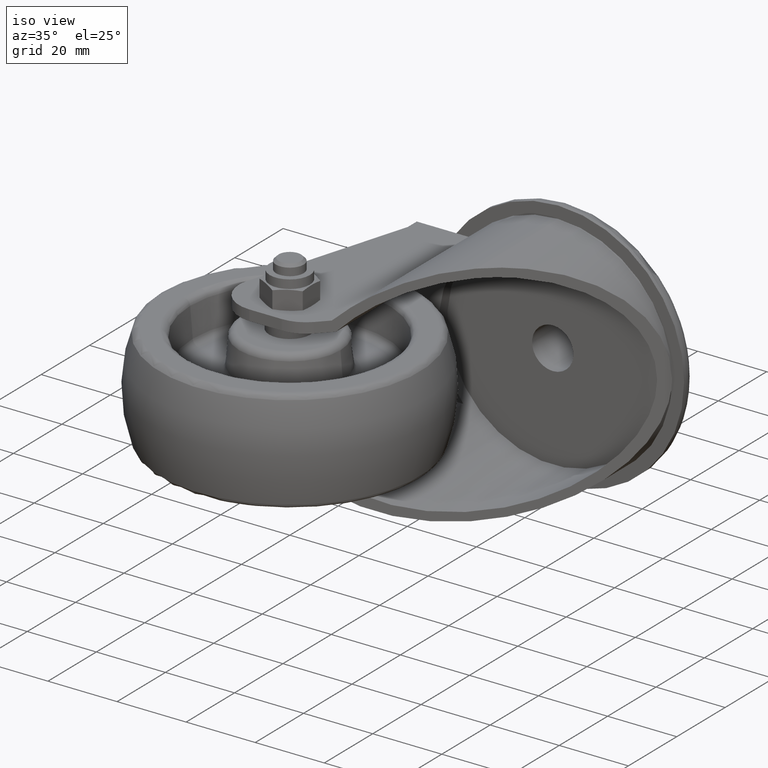
[diagram: clean part render]
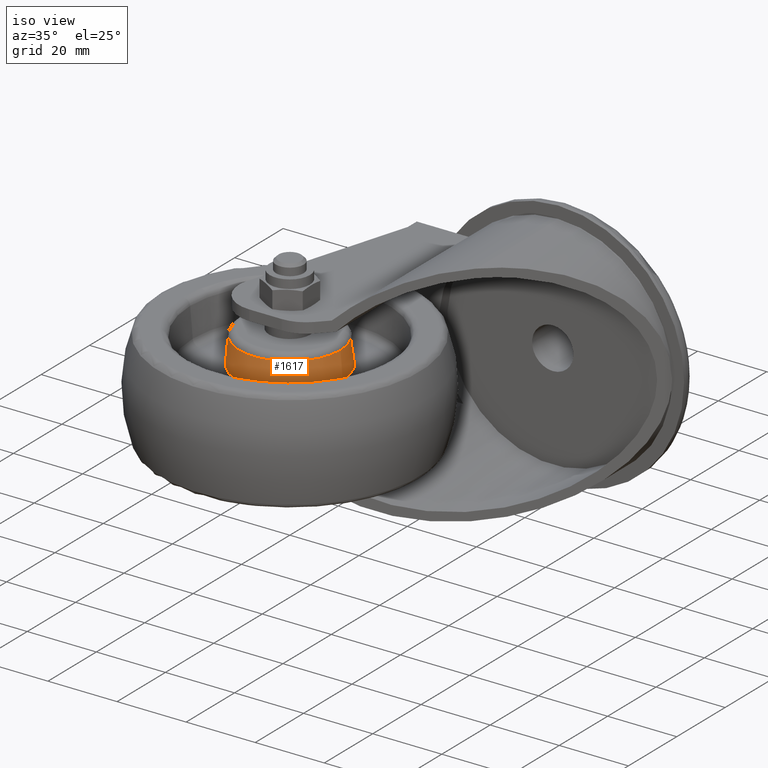
[diagram: same view with one face highlighted and labeled with its STEP entity id]
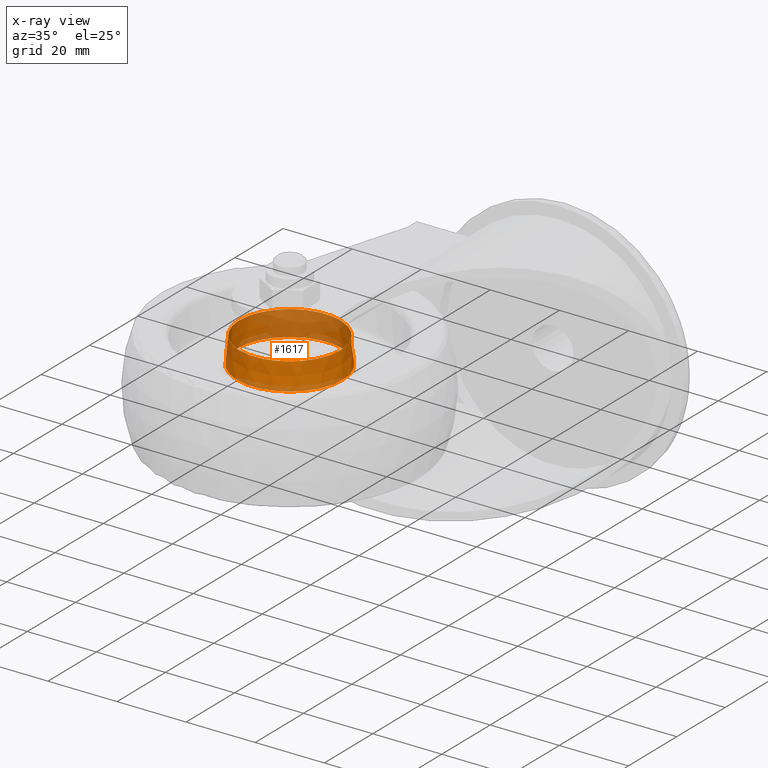
[diagram: x-ray of the same camera — body ghosted, the highlighted face saturated]
A machine part, iso view. The second image highlights one B-rep face of the part: STEP entity #1617.
The next image is the same camera in x-ray: the body ghosted, the highlighted face saturated — about 39% of this face is hidden behind the body in this view.
In plain terms, the highlighted conical surface has half-angle 5 deg.
Its self-contained STEP definition (entity closure, byte-faithful):
#97=CONICAL_SURFACE('',#1914,14.6597270481486,0.0872664625997163);
#298=FACE_OUTER_BOUND('',#421,.T.);
#421=EDGE_LOOP('',(#1429,#1430,#1431,#1432,#1433,#1434));
#514=CIRCLE('',#1912,14.6597270481486);
#515=CIRCLE('',#1913,14.6597270481486);
#516=CIRCLE('',#1915,15.3251722639363);
#517=CIRCLE('',#1916,15.3251722639363);
#616=LINE('',#2981,#684);
#684=VECTOR('',#2375,14.6597270481486);
#804=VERTEX_POINT('',#2971);
#805=VERTEX_POINT('',#2973);
#806=VERTEX_POINT('',#2977);
#807=VERTEX_POINT('',#2978);
#1015=EDGE_CURVE('',#804,#805,#514,.T.);
#1016=EDGE_CURVE('',#805,#804,#515,.T.);
#1017=EDGE_CURVE('',#806,#807,#516,.T.);
#1018=EDGE_CURVE('',#807,#806,#517,.T.);
#1019=EDGE_CURVE('',#806,#805,#616,.T.);
#1429=ORIENTED_EDGE('',*,*,#1017,.T.);
#1430=ORIENTED_EDGE('',*,*,#1018,.T.);
#1431=ORIENTED_EDGE('',*,*,#1019,.T.);
#1432=ORIENTED_EDGE('',*,*,#1015,.F.);
#1433=ORIENTED_EDGE('',*,*,#1016,.F.);
#1434=ORIENTED_EDGE('',*,*,#1019,.F.);
#1617=ADVANCED_FACE('',(#298),#97,.T.);
#1912=AXIS2_PLACEMENT_3D('',#2974,#2365,#2366);
#1913=AXIS2_PLACEMENT_3D('',#2975,#2367,#2368);
#1914=AXIS2_PLACEMENT_3D('',#2976,#2369,#2370);
#1915=AXIS2_PLACEMENT_3D('',#2979,#2371,#2372);
#1916=AXIS2_PLACEMENT_3D('',#2980,#2373,#2374);
#2365=DIRECTION('center_axis',(0.,0.,1.));
#2366=DIRECTION('ref_axis',(1.,0.,0.));
#2367=DIRECTION('center_axis',(0.,0.,1.));
#2368=DIRECTION('ref_axis',(1.,0.,0.));
#2369=DIRECTION('center_axis',(0.,0.,-1.));
#2370=DIRECTION('ref_axis',(-1.,0.,0.));
#2371=DIRECTION('center_axis',(0.,0.,1.));
#2372=DIRECTION('ref_axis',(1.,0.,0.));
#2373=DIRECTION('center_axis',(0.,0.,1.));
#2374=DIRECTION('ref_axis',(1.,0.,0.));
#2375=DIRECTION('',(-0.087155742747658,1.06735001383229E-17,0.996194698091746));
#2971=CARTESIAN_POINT('',(-14.6597270481486,-1.79529878058891E-15,13.1743114854953));
#2973=CARTESIAN_POINT('',(14.6597270481486,0.,13.1743114854953));
#2974=CARTESIAN_POINT('Origin',(0.,0.,13.1743114854953));
#2975=CARTESIAN_POINT('Origin',(0.,0.,13.1743114854953));
#2976=CARTESIAN_POINT('Origin',(0.,0.,13.1743114854953));
#2977=CARTESIAN_POINT('',(15.3251722639363,0.,5.56823786441971));
#2978=CARTESIAN_POINT('',(-15.3251722639363,-1.87679231594114E-15,5.56823786441971));
#2979=CARTESIAN_POINT('Origin',(0.,0.,5.56823786441971));
#2980=CARTESIAN_POINT('Origin',(0.,0.,5.56823786441971));
#2981=CARTESIAN_POINT('',(14.6597270481486,-1.79529878058891E-15,13.1743114854953));